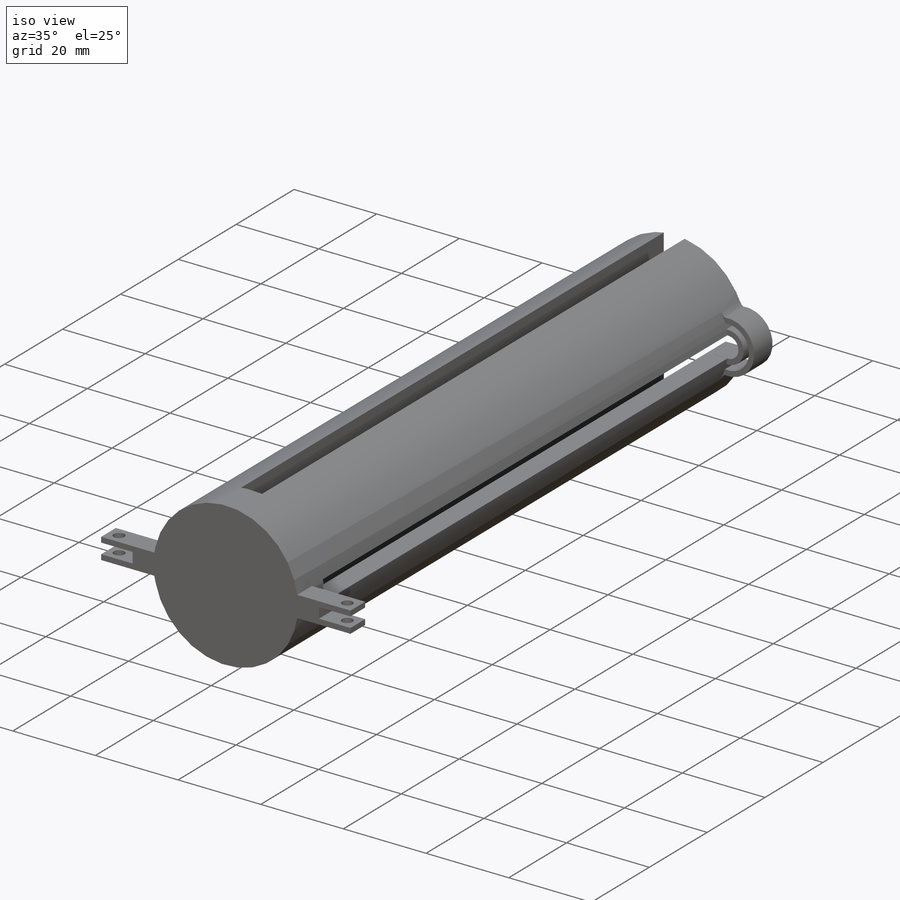
[diagram: iso view]
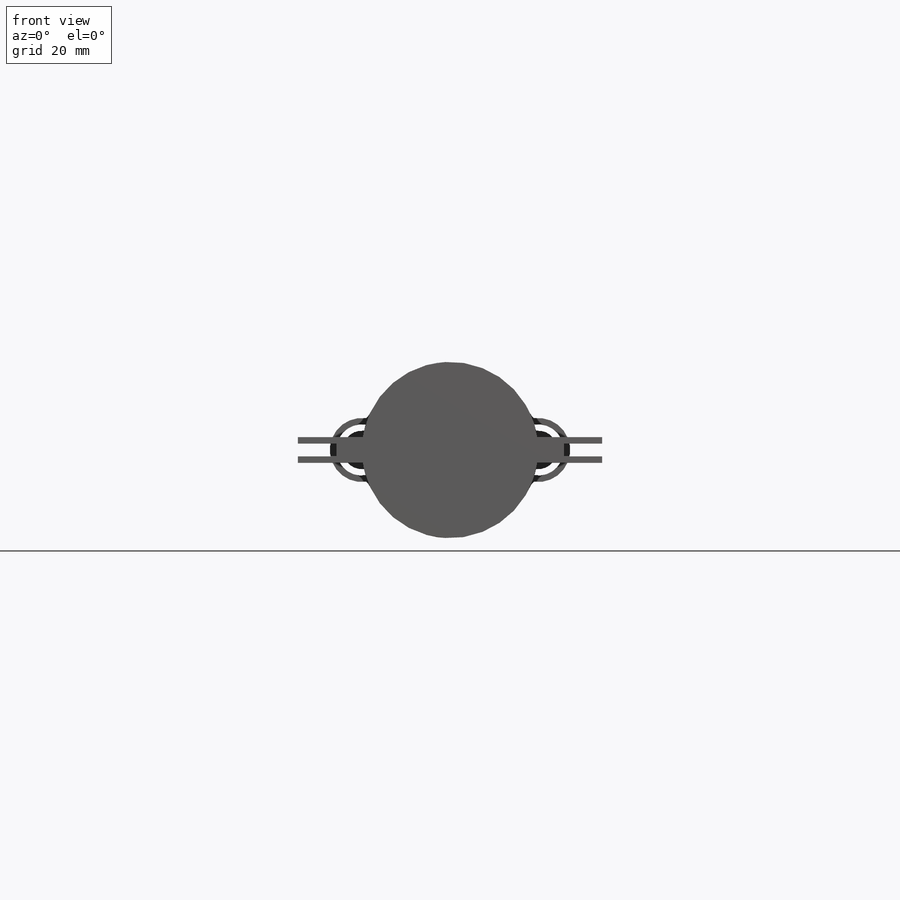
[diagram: front view]
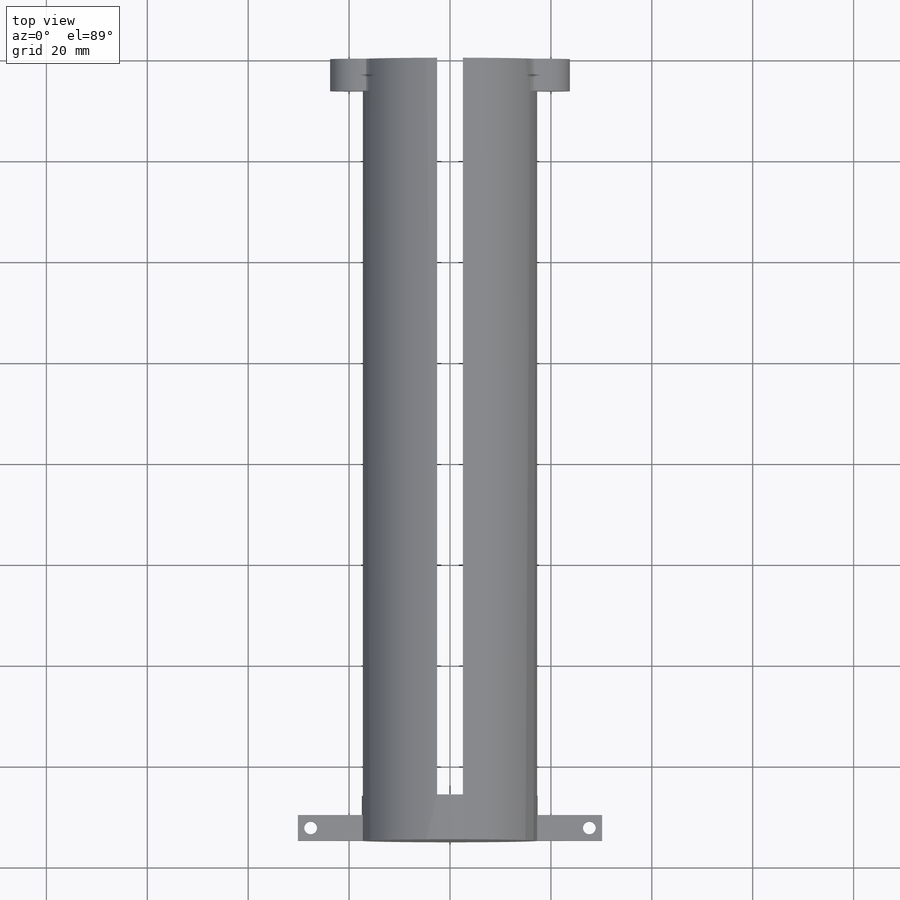
[diagram: top view]
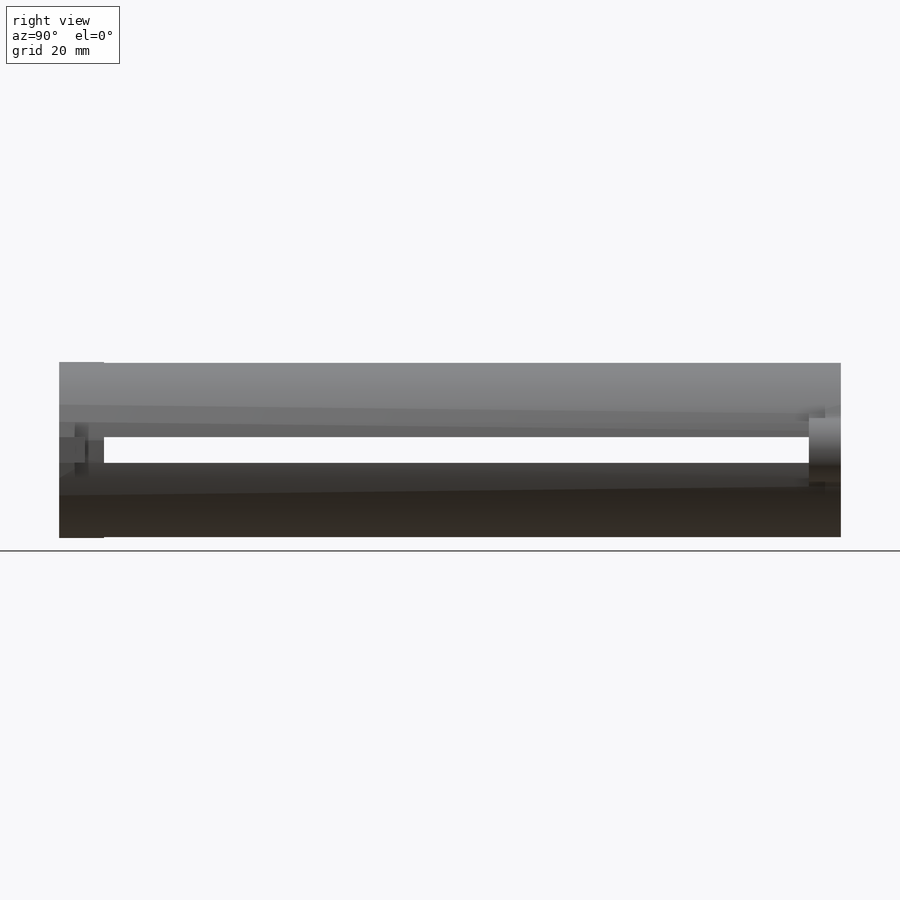
[diagram: right view]
SOLIDWORKS PART (.sldprt)
format: sldprt  version: not decoded by parser v0  size: 368,128 bytes
history: native  units: mm
features: sketch x7, cut_extrude x3, plane x2, extrude x2, material x1, fillet x1, mirror x1 (+11 scaffold rows collapsed)
feature tree (28):
  scaffold x11  (default folders/planes/origin — collapsed)
  material  "Material <not specified>"
  sketch  "Sketch1"  dims[c1.D1=25.4mm c2.D1=152.4mm c2.D5=4.7625mm c2.D6=1.0mm c2.D7=5.0mm]
  plane  "Plane1"  Offset=6.35mm
  sketch  "Sketch2"  dims[c1.D1=5.08mm c1.D2=5.08mm c1.D3=63.5mm c1.D4=63.5mm c1.D5=29.21mm c1.D6=29.21mm c2.D5=2.54mm c2.D6=2.54mm c2.D7=29.21mm c2.D8=29.21mm]
  cut_extrude  "Cut-Extrude1"  Depth=139.7mm
  sketch  "Sketch3"  dims[c1.D1=5.2832mm c1.D2=5.2832mm c2.D1=3.81mm c2.D2=3.81mm c2.D3=5.08mm c2.D4=5.08mm c3.D2=~10.112696mm c3.D5=~1.965749mm c3.D6=~1.965749mm c3.D7=~1.474451mm c3.D8=~1.474451mm c3.D1=6.35mm c4.D5=1.27mm c4.D6=1.0mm c4.D7=5.0mm]
  sketch  "Sketch4"  dims[D1=34.925mm]
  extrude  "Boss-Extrude1"  Depth=2.54mm
  fillet  "Fillet1"  Radius=2.54mm
  plane  "Plane3"
  sketch  "Sketch5"  dims[D1=5.08mm D2=5.08mm D3=2.54mm D4=151.13mm]
  extrude  "Boss-Extrude2"  Depth=12.7mm
  sketch  "Sketch6"  dims[D1=2.54mm D2=7.62mm]
  cut_extrude  "Cut-Extrude2"  [1 undecoded]
  sketch  "Sketch7"  dims[D1=2.54mm D2=2.54mm]
  cut_extrude  "Cut-Extrude3"  [1 undecoded]
  mirror  "Mirror2"
decode coverage: 11 of 14 modeling features carry decoded parameters
note: ~ marks probable driven/reference dimensions
note: 2 parameter values undecoded
note: suppression state not decoded; provenance and decode notes live in map.json
